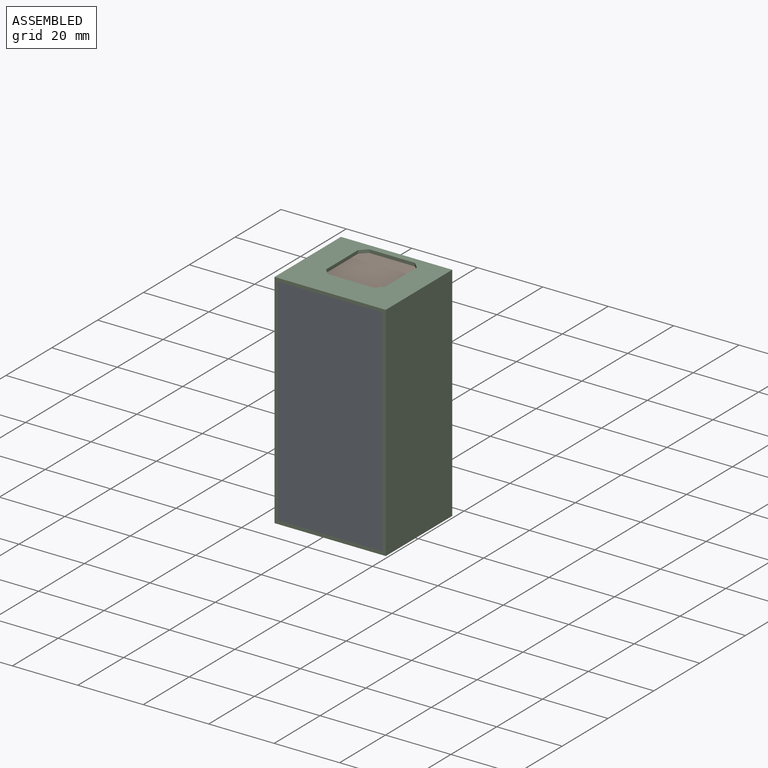
[diagram: assembled view]
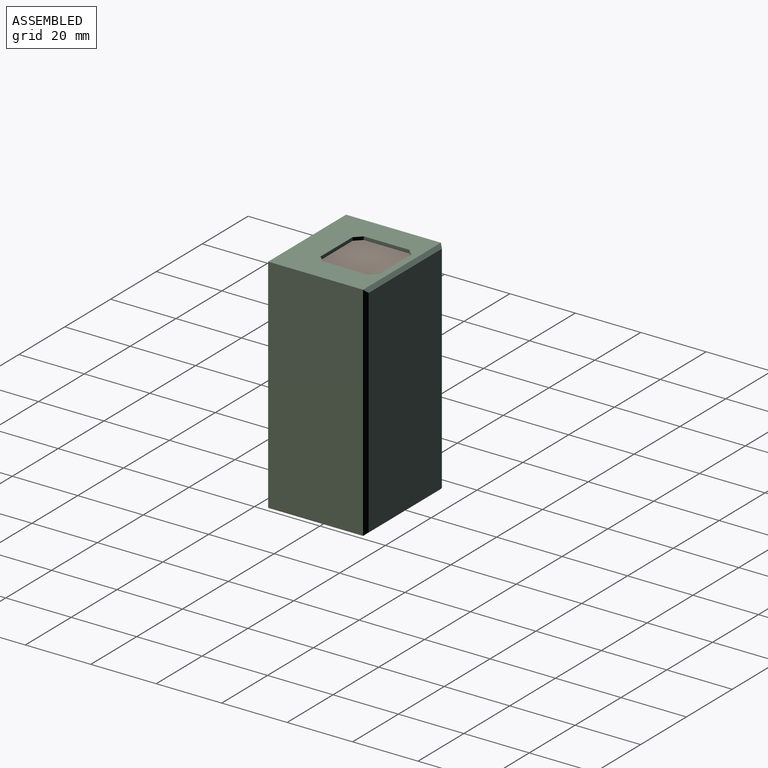
[diagram: assembled view, second angle]
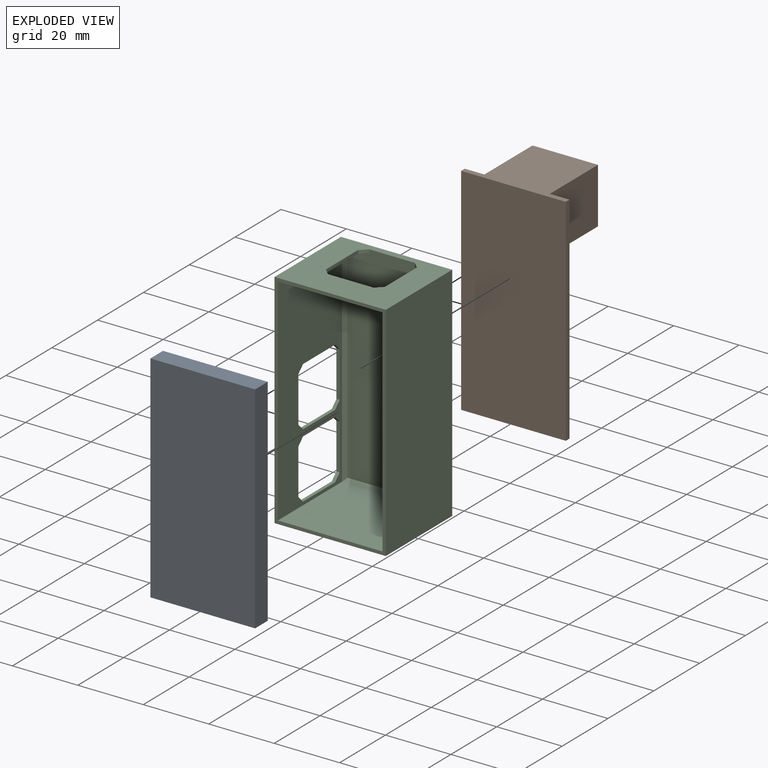
[diagram: exploded view]
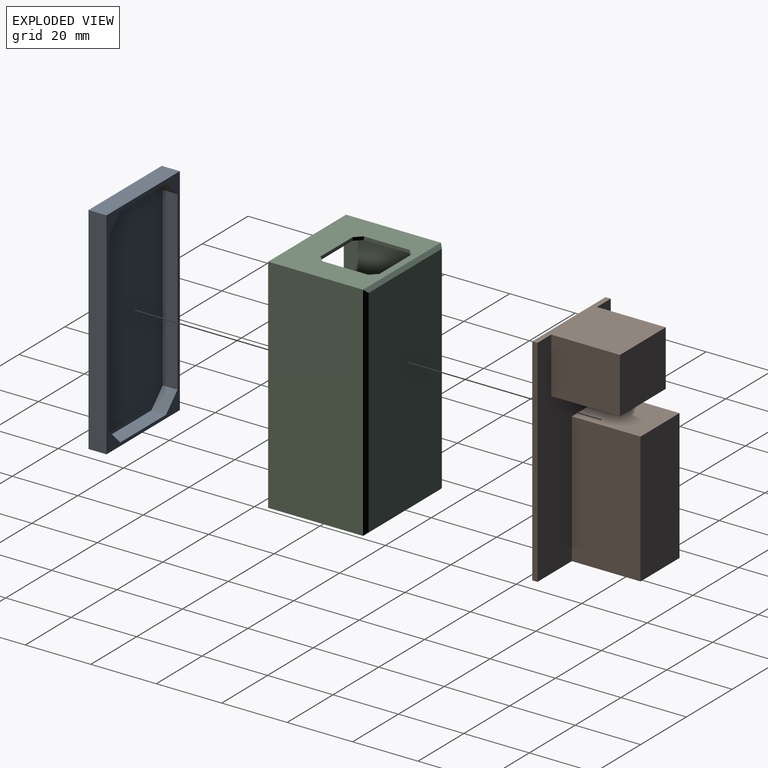
[diagram: exploded view, second angle]
ASSEMBLY  parts=3 mates=2
PART A: 15 faces, bbox 32x5.5x66 mm
  f0: plane 66x32mm, normal (0,1,0), area 242mm2, adj f1,f2,f3,f4,f6,f7,f8,f9
  f1: plane 32x5.5mm, normal (0,0,-1), area 176mm2, adj f0,f2,f4,f5
  f2: plane 66x5.5mm, normal (1,0,0), area 363mm2, adj f0,f1,f3,f5
  f3: plane 32x5.5mm, normal (0,0,1), area 176mm2, adj f0,f2,f4,f5
  f4: plane 66x5.5mm, normal (-1,0,0), area 363mm2, adj f0,f1,f3,f5
  f5: plane 66x32mm, normal (0,-1,0), area 2112mm2, adj f1,f2,f3,f4
  f6: plane 20x4.5mm, normal (0,0,1), area 90mm2, adj f0,f10,f11,f12
  f7: plane 54x4.5mm, normal (1,0,0), area 243mm2, adj f0,f10,f11,f13
  f8: plane 20x4.5mm, normal (0,0,-1), area 90mm2, adj f0,f10,f13,f14
  f9: plane 54x4.5mm, normal (-1,0,0), area 243mm2, adj f0,f10,f12,f14
  f10: plane 64x30mm, normal (0,1,0), area 1870mm2, adj f6,f7,f8,f9,f11,f12,f13,f14
  f11: plane 5x5mm, normal (0.71,0,0.71), area 31.8mm2, adj f0,f6,f7,f10
  f12: plane 5x5mm, normal (-0.71,0,0.71), area 31.8mm2, adj f0,f6,f9,f10
  f13: plane 5x5mm, normal (0.71,0,-0.71), area 31.8mm2, adj f0,f7,f8,f10
  f14: plane 5x5mm, normal (-0.71,0,-0.71), area 31.8mm2, adj f0,f8,f9,f10
PART B: 13 faces, bbox 32x66x22.6 mm
  f0: plane 66x32mm, normal (0,0,1), area 1092mm2, adj f1,f2,f3,f4,f6,f7,f9,f10
  f1: plane 32x22.6mm, normal (0,-1,0), area 408.2mm2, adj f0,f2,f4,f5,f7,f8
  f2: plane 66x22.6mm, normal (1,0,0), area 945.6mm2, adj f0,f1,f3,f5,f6,f8
  f3: plane 32x22.6mm, normal (0,1,0), area 471.2mm2, adj f0,f2,f4,f5,f9,f10,f12
  f4: plane 66x1.6mm, normal (-1,0,0), area 105.6mm2, adj f0,f1,f3,f5
  f5: plane 66x32mm, normal (0,0,-1), area 2112mm2, adj f1,f2,f3,f4
  f6: plane 21x17mm, normal (0,1,0), area 357mm2, adj f0,f2,f7,f8
  f7: plane 40x21mm, normal (-1,0,0), area 840mm2, adj f0,f1,f6,f8
  f8: plane 40x17mm, normal (0,0,1), area 680mm2, adj f1,f2,f6,f7
  f9: plane 21x17mm, normal (1,0,0), area 357mm2, adj f0,f3,f11,f12
  f10: plane 21x17mm, normal (-1,0,0), area 357mm2, adj f0,f3,f11,f12
  f11: plane 21x20mm, normal (0,-1,0), area 420mm2, adj f0,f9,f10,f12
  f12: plane 20x17mm, normal (0,0,1), area 340mm2, adj f3,f9,f10,f11
PART C: 43 faces, bbox 68x34x30 mm
  f0: plane 68x29mm, normal (0,-1,0), area 1340mm2, adj f2,f4,f5,f15,f16,f17,f18,f19
  f1: plane 66x28mm, normal (0,1,0), area 1216mm2, adj f3,f4,f8,f15,f16,f17,f18,f19
  f2: plane 34x29mm, normal (-1,0,0), area 670mm2, adj f0,f4,f6,f11,f12,f13,f14,f23
  f3: plane 32x28mm, normal (1,0,0), area 580mm2, adj f1,f4,f9,f11,f12,f13,f14,f27
  f4: plane 68x34mm, normal (0,0,1), area 200mm2, adj f0,f1,f2,f3,f5,f6,f8,f9
  f5: plane 34x29mm, normal (1,0,0), area 986mm2, adj f0,f4,f6,f26
  f6: plane 68x29mm, normal (0,1,0), area 1972mm2, adj f2,f4,f5,f25
  f7: plane 66x32mm, normal (0,0,-1), area 2112mm2, adj f23,f24,f25,f26
  f8: plane 32x28mm, normal (-1,0,0), area 896mm2, adj f1,f4,f9,f30
  f9: plane 66x28mm, normal (0,-1,0), area 1848mm2, adj f3,f4,f8,f29
  f10: plane 64x30mm, normal (0,0,1), area 1920mm2, adj f27,f28,f29,f30
  f11: plane 14x1mm, normal (0,0,1), area 14mm2, adj f2,f3,f39,f42
  f12: plane 14x1mm, normal (0,1,0), area 14mm2, adj f2,f3,f41,f42
  f13: plane 14x1mm, normal (0,0,-1), area 14mm2, adj f2,f3,f40,f41
  f14: plane 14x1mm, normal (0,-1,0), area 14mm2, adj f2,f3,f39,f40
  f15: plane 14x1mm, normal (0,0,1), area 14mm2, adj f0,f1,f36,f38
  f16: plane 14x1mm, normal (-1,0,0), area 14mm2, adj f0,f1,f33,f38
  f17: plane 14x1mm, normal (0,0,-1), area 14mm2, adj f0,f1,f32,f33
  f18: plane 14x1mm, normal (1,0,0), area 14mm2, adj f0,f1,f32,f36
  f19: plane 14x1mm, normal (0,0,1), area 14mm2, adj f0,f1,f35,f37
  f20: plane 14x1mm, normal (-1,0,0), area 14mm2, adj f0,f1,f34,f37
  f21: plane 14x1mm, normal (0,0,-1), area 14mm2, adj f0,f1,f31,f34
  f22: plane 14x1mm, normal (1,0,0), area 14mm2, adj f0,f1,f31,f35
  f23: plane 34x1mm, normal (-0.71,0,-0.71), area 46.7mm2, adj f2,f7,f24,f25
  f24: plane 68x1mm, normal (0,-0.71,-0.71), area 94.8mm2, adj f0,f7,f23,f26
  f25: plane 68x1mm, normal (0,0.71,-0.71), area 94.8mm2, adj f6,f7,f23,f26
  f26: plane 34x1mm, normal (0.71,0,-0.71), area 46.7mm2, adj f5,f7,f24,f25
  f27: plane 32x1mm, normal (0.71,0,0.71), area 43.8mm2, adj f3,f10,f28,f29
  f28: plane 66x1mm, normal (0,0.71,0.71), area 91.9mm2, adj f1,f10,f27,f30
  f29: plane 66x1mm, normal (0,-0.71,0.71), area 91.9mm2, adj f9,f10,f27,f30
  f30: plane 32x1mm, normal (-0.71,0,0.71), area 43.8mm2, adj f8,f10,f28,f29
  f31: plane 2x2mm, normal (0.71,0,-0.71), area 2.8mm2, adj f0,f1,f21,f22
  f32: plane 2x2mm, normal (0.71,0,-0.71), area 2.8mm2, adj f0,f1,f17,f18
  f33: plane 2x2mm, normal (-0.71,0,-0.71), area 2.8mm2, adj f0,f1,f16,f17
  f34: plane 2x2mm, normal (-0.71,0,-0.71), area 2.8mm2, adj f0,f1,f20,f21
  f35: plane 2x2mm, normal (0.71,0,0.71), area 2.8mm2, adj f0,f1,f19,f22
  f36: plane 2x2mm, normal (0.71,0,0.71), area 2.8mm2, adj f0,f1,f15,f18
  f37: plane 2x2mm, normal (-0.71,0,0.71), area 2.8mm2, adj f0,f1,f19,f20
  f38: plane 2x2mm, normal (-0.71,0,0.71), area 2.8mm2, adj f0,f1,f15,f16
  f39: plane 2x2mm, normal (0,-0.71,0.71), area 2.8mm2, adj f2,f3,f11,f14
  f40: plane 2x2mm, normal (0,-0.71,-0.71), area 2.8mm2, adj f2,f3,f13,f14
  f41: plane 2x2mm, normal (0,0.71,-0.71), area 2.8mm2, adj f2,f3,f12,f13
  f42: plane 2x2mm, normal (0,0.71,0.71), area 2.8mm2, adj f2,f3,f11,f12
PLACE A t=(3.78,-49.77,49.16)mm
PLACE B rot(axis=(0,0.71,0.71),180deg) t=(3.78,-48.87,49.16)mm
PLACE C rot(axis=(0.58,0.58,-0.58),120deg) t=(3.78,-25.27,49.16)mm
MATE fastened C.f4 <-> A.f5  axis (0,-1,0) through (19.78,-55.27,82.16)mm
MATE fastened B.f8 <-> C.f10  axis (0,1,0) through (-12.22,-26.27,16.16)mm
